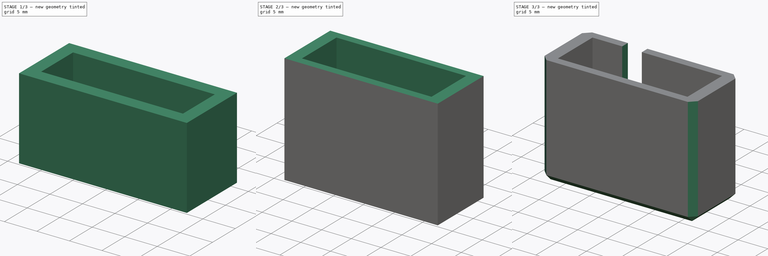
[diagram: build sequence overview — one tinted view per stage of 3, left to right]
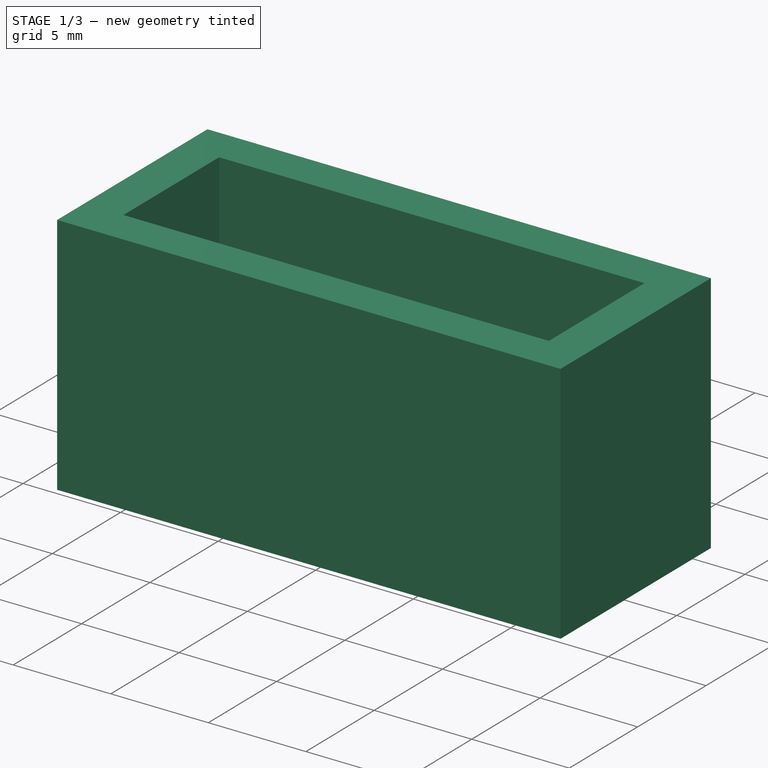
[diagram: stage 1 of 3 — iso view after this stage's code; geometry added in this stage tinted green]
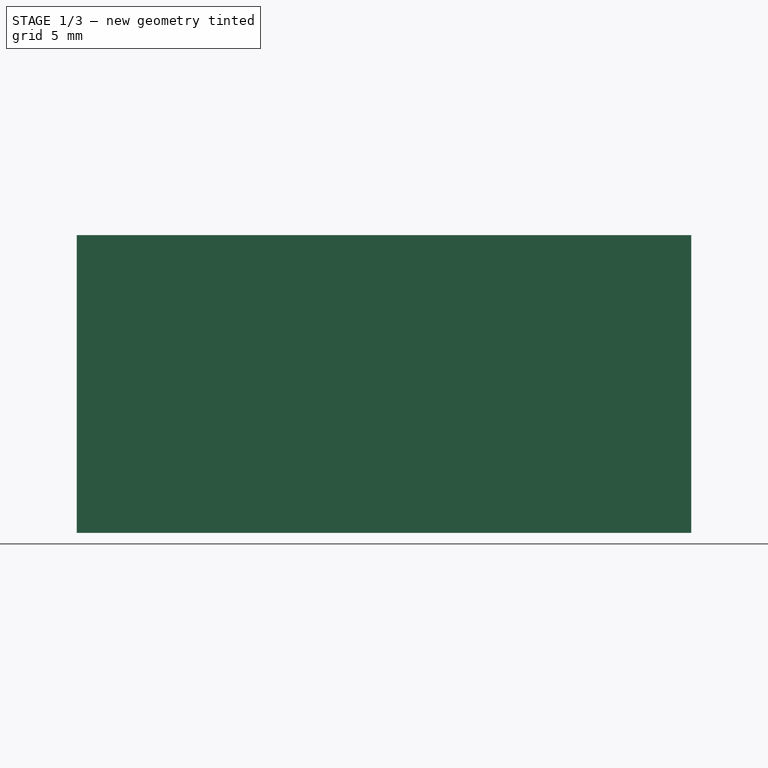
[diagram: stage 1 of 3 — front view after this stage's code; geometry added in this stage tinted green]
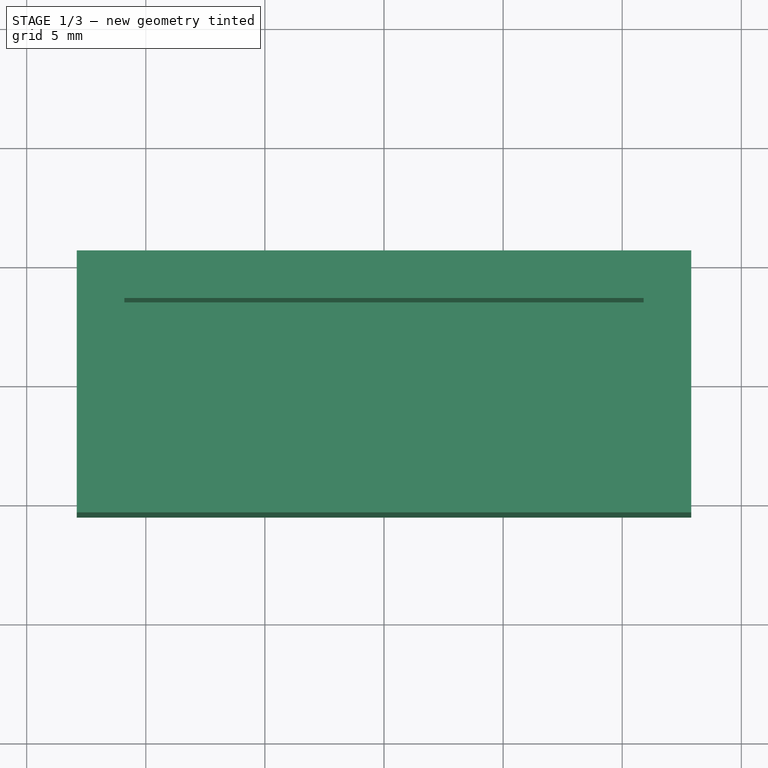
[diagram: stage 1 of 3 — top view after this stage's code; geometry added in this stage tinted green]
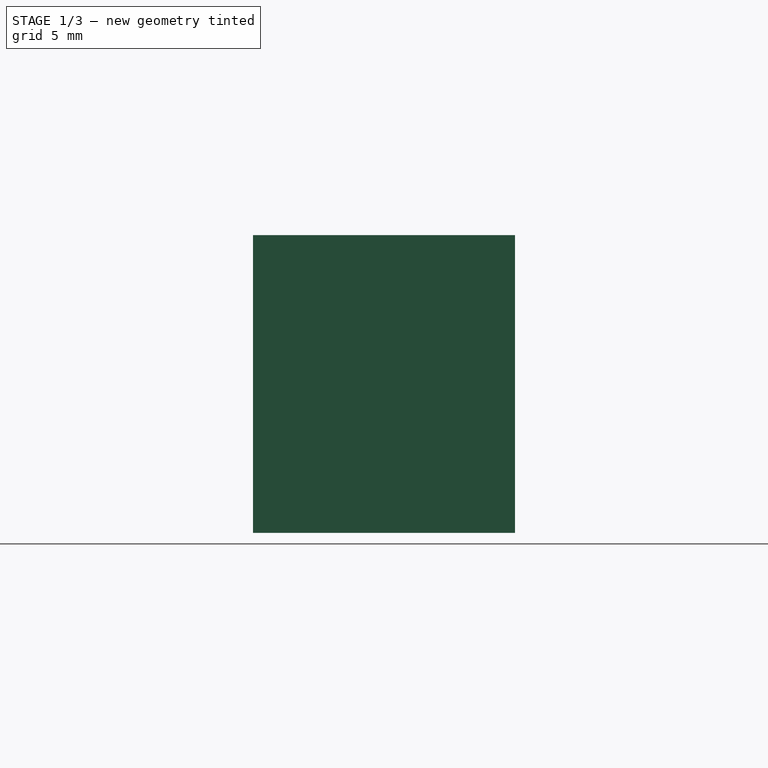
[diagram: stage 1 of 3 — right view after this stage's code; geometry added in this stage tinted green]
FCSTD DOCUMENT  (FreeCAD 0.19R23578 (Git))
Label: molex f cap
License: All rights reserved
LicenseURL: http://en.wikipedia.org/wiki/All_rights_reserved
objects: Sketcher::SketchObject×3, PartDesign::Pad×2, PartDesign::Thickness×1, PartDesign::Pocket×1, PartDesign::Chamfer×1, PartDesign::Body×1
note: 14 computed .brp shape members not serialized (recipe doc carries the construction recipe); baked Part::Feature solids carry a one-line shape summary decoded from their .brp

FEATURE [Sketcher::SketchObject] Sketch
  MapMode = 5
  Support = -> [XY_Plane]
  sketch-geometry (4):
    g0: LineSegment StartX=-10.9 StartY=3.5 StartZ=0 EndX=10.9 EndY=3.5 EndZ=0
    g1: LineSegment StartX=10.9 StartY=3.5 StartZ=0 EndX=10.9 EndY=-3.5 EndZ=0
    g2: LineSegment StartX=10.9 StartY=-3.5 StartZ=0 EndX=-10.9 EndY=-3.5 EndZ=0
    g3: LineSegment StartX=-10.9 StartY=-3.5 StartZ=0 EndX=-10.9 EndY=3.5 EndZ=0
  constraints (11):
    c: Coincident(g0,g1)
    c: Coincident(g1,g2)
    c: Coincident(g2,g3)
    c: Coincident(g3,g0)
    c: Horizontal(g0)
    c: Horizontal(g2)
    c: Vertical(g1)
    c: Vertical(g3)
    c: Symmetric(g1,g0,g-1)
    c: DistanceY(g1,g1) = 7
    c: DistanceX(g0,g0) = 21.8
FEATURE [PartDesign::Pad] Pad
  Direction = (1,1,1)
  Length = 10.5
  Length2 = 100
  Profile = -> Sketch
  Refine = true
  Type = 0
  expr: Length = 10.5mm
FEATURE [PartDesign::Thickness] Thickness
  Base = -> Pad [Face6]
  BaseFeature = -> Pad
  Intersection = false
  Join = 1
  Mode = 0
  Refine = true
  SupportTransform = false
  Value = 2
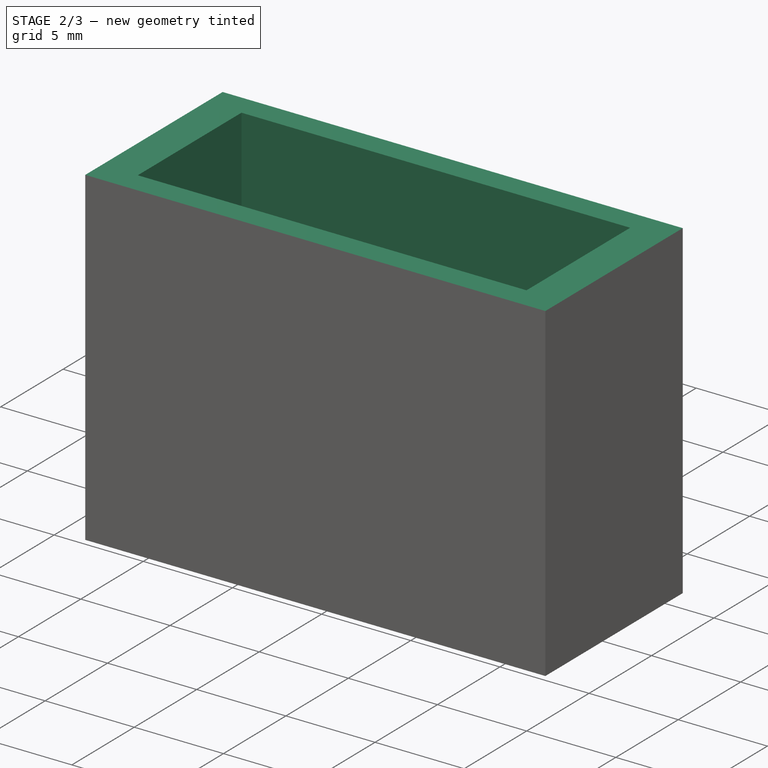
[diagram: stage 2 of 3 — iso view after this stage's code; geometry added in this stage tinted green]
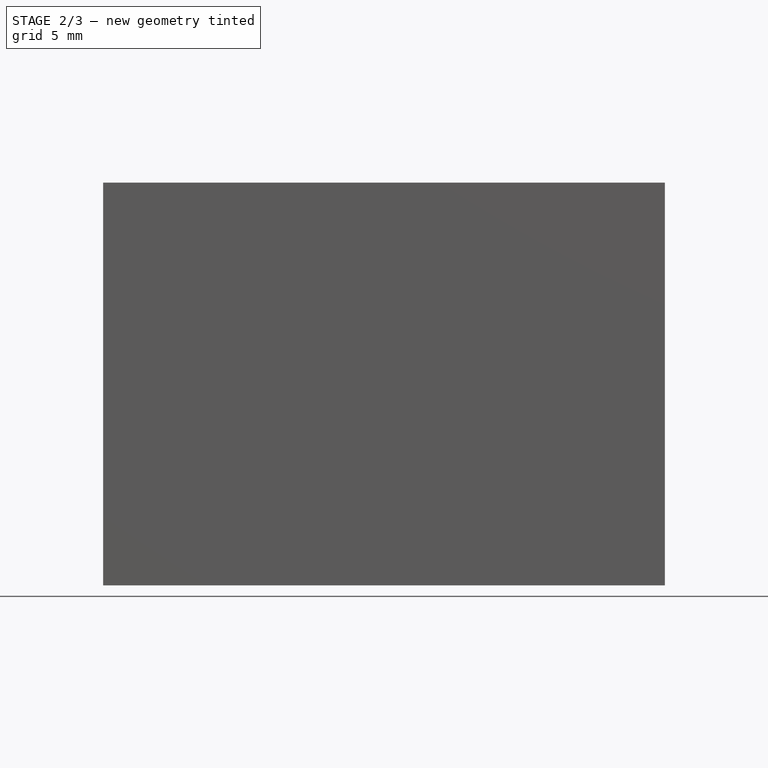
[diagram: stage 2 of 3 — front view after this stage's code; geometry added in this stage tinted green]
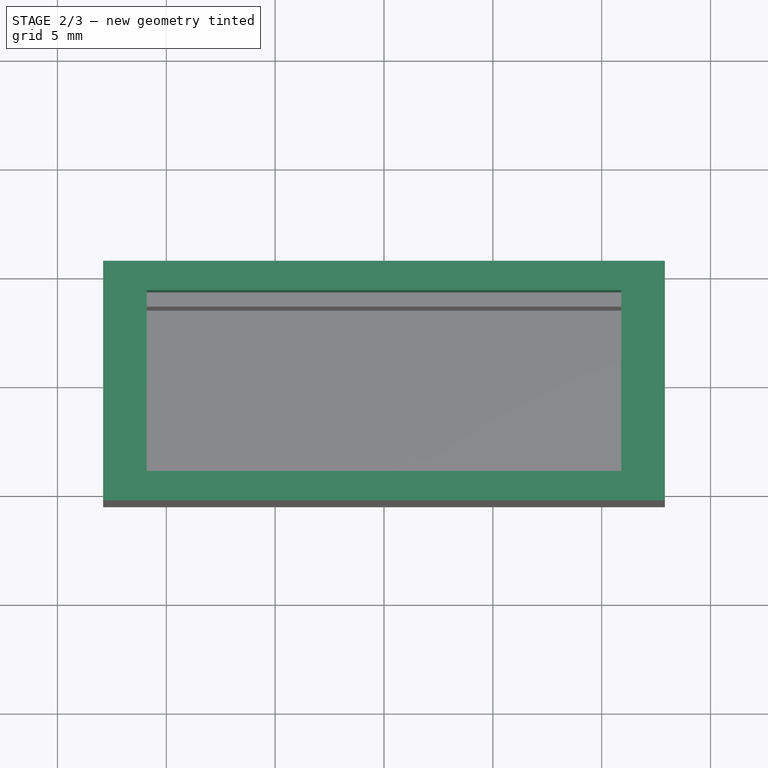
[diagram: stage 2 of 3 — top view after this stage's code; geometry added in this stage tinted green]
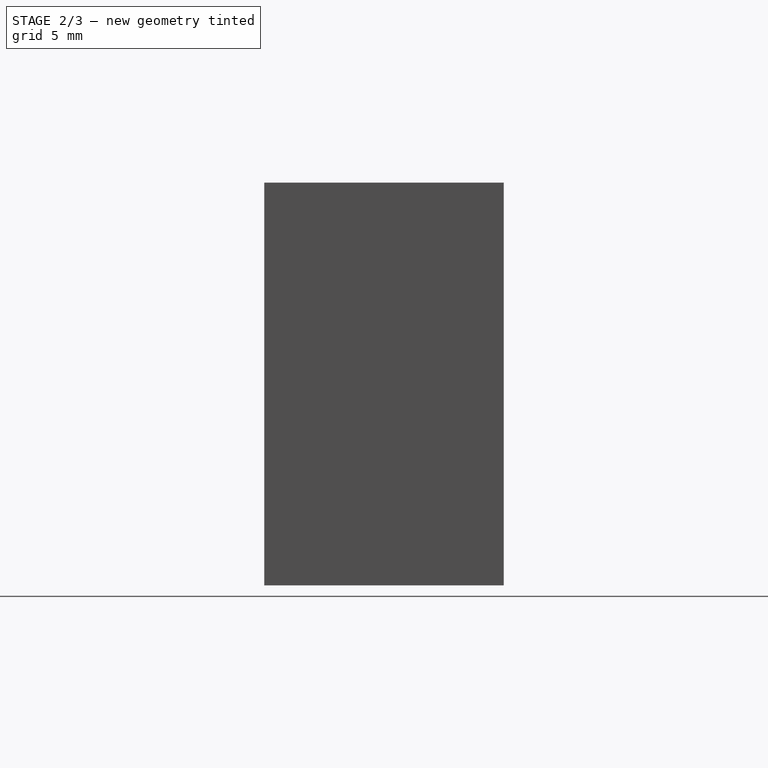
[diagram: stage 2 of 3 — right view after this stage's code; geometry added in this stage tinted green]
FEATURE [Sketcher::SketchObject] Sketch001
  ExternalGeometry = -> [Thickness]
  MapMode = 5
  Placement = pos=(0,0,10.5) rot=(0,0,1;0rad)
  Support = -> [Thickness]
  sketch-geometry (8):
    g0: LineSegment StartX=-12.9 StartY=5.5 StartZ=0 EndX=12.9 EndY=5.5 EndZ=0
    g1: LineSegment StartX=12.9 StartY=5.5 StartZ=0 EndX=12.9 EndY=-5.5 EndZ=0
    g2: LineSegment StartX=12.9 StartY=-5.5 StartZ=0 EndX=-12.9 EndY=-5.5 EndZ=0
    g3: LineSegment StartX=-12.9 StartY=-5.5 StartZ=0 EndX=-12.9 EndY=5.5 EndZ=0
    g4: LineSegment StartX=-10.9 StartY=4.15 StartZ=0 EndX=10.9 EndY=4.15 EndZ=0
    g5: LineSegment StartX=10.9 StartY=4.15 StartZ=0 EndX=10.9 EndY=-4.15 EndZ=0
    g6: LineSegment StartX=10.9 StartY=-4.15 StartZ=0 EndX=-10.9 EndY=-4.15 EndZ=0
    g7: LineSegment StartX=-10.9 StartY=-4.15 StartZ=0 EndX=-10.9 EndY=4.15 EndZ=0
  constraints (21):
    c: Coincident(g0,g1)
    c: Coincident(g1,g2)
    c: Coincident(g2,g3)
    c: Coincident(g3,g0)
    c: Horizontal(g0)
    c: Horizontal(g2)
    c: Vertical(g1)
    c: Vertical(g3)
    c: Coincident(g0,g-3)
    c: Coincident(g1,g-4)
    c: Coincident(g4,g5)
    c: Coincident(g5,g6)
    c: Coincident(g6,g7)
    c: Coincident(g7,g4)
    c: Horizontal(g4)
    c: Horizontal(g6)
    c: Vertical(g5)
    c: Vertical(g7)
    c: Vertical(g5,g-5)
    c: Symmetric(g5,g4,g-1)
    c: DistanceY(g5,g5) = 8.3
FEATURE [PartDesign::Pad] Pad001
  BaseFeature = -> Thickness
  Direction = (1,1,1)
  Length = 6
  Length2 = 100
  Profile = -> Sketch001
  Refine = true
  Type = 0
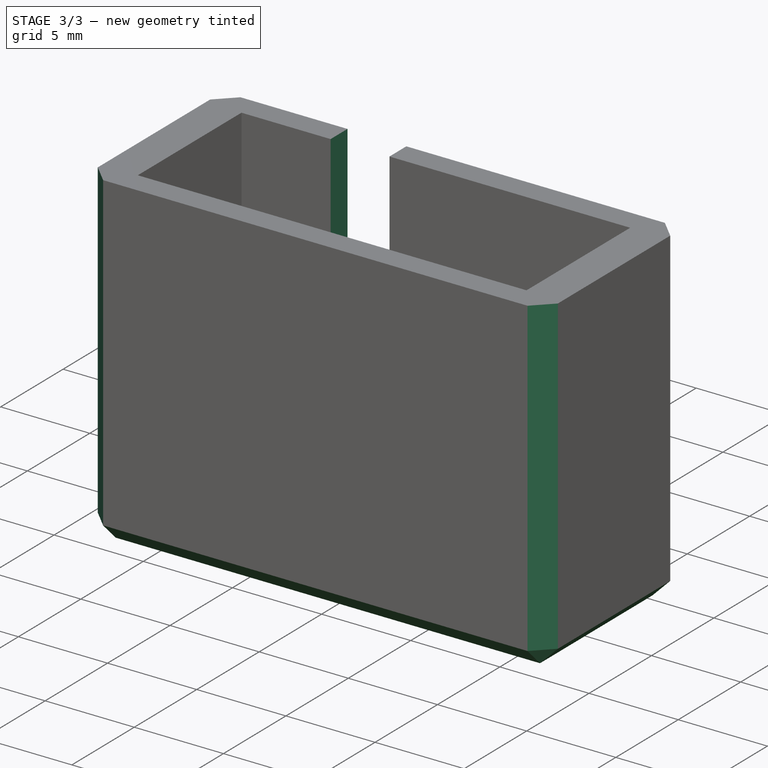
[diagram: stage 3 of 3 — iso view after this stage's code; geometry added in this stage tinted green]
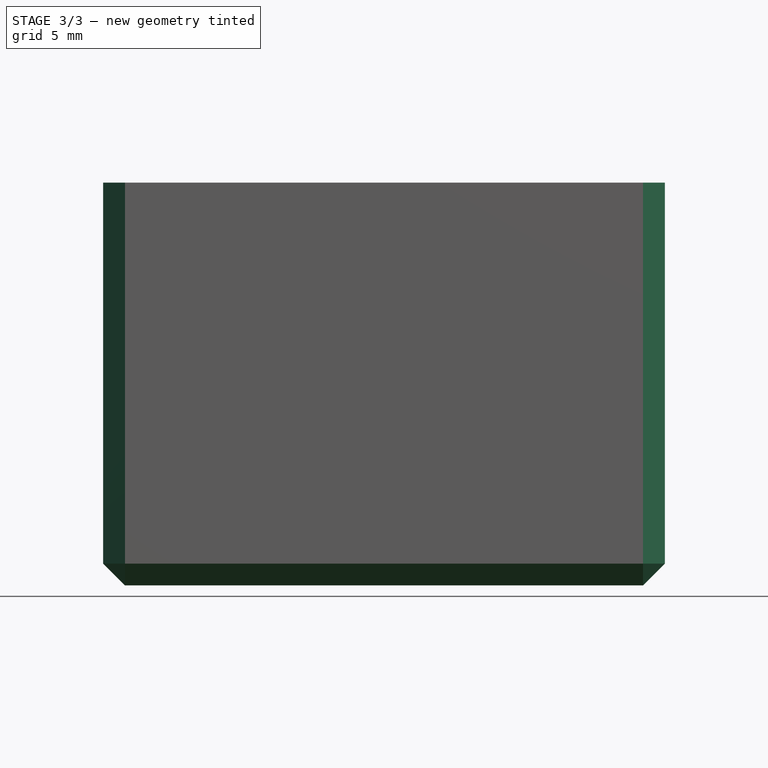
[diagram: stage 3 of 3 — front view after this stage's code; geometry added in this stage tinted green]
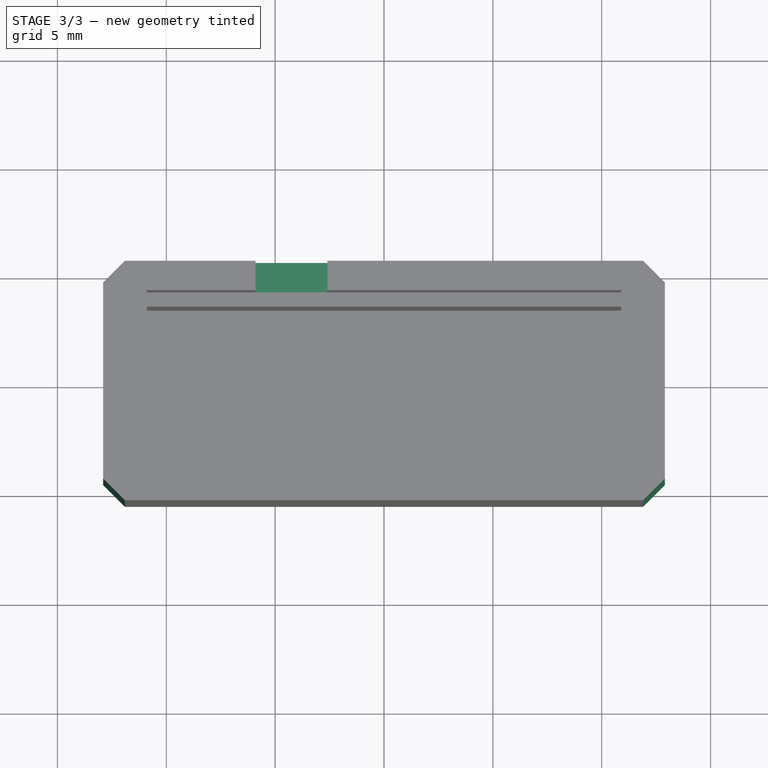
[diagram: stage 3 of 3 — top view after this stage's code; geometry added in this stage tinted green]
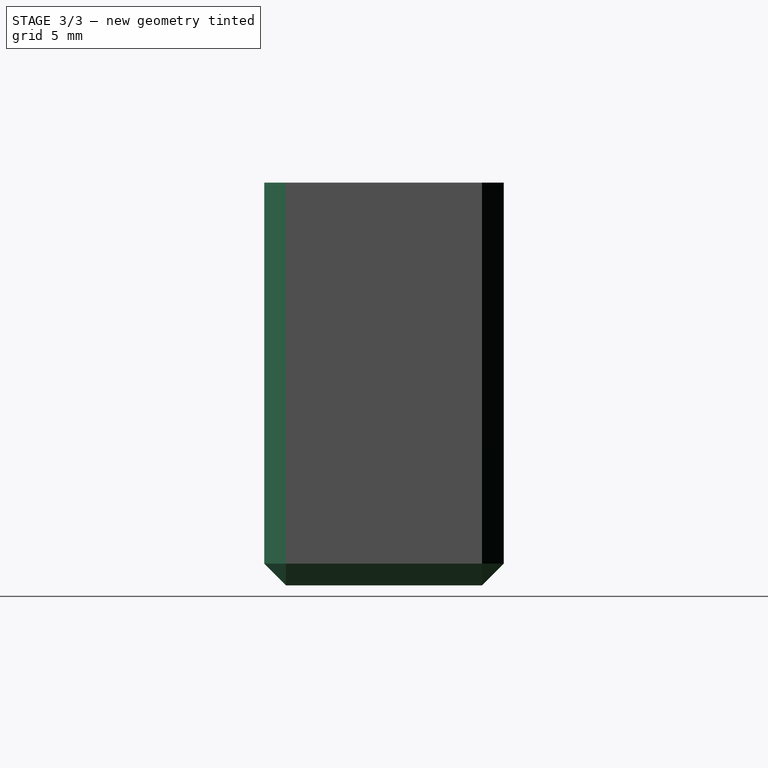
[diagram: stage 3 of 3 — right view after this stage's code; geometry added in this stage tinted green]
FEATURE [Sketcher::SketchObject] Sketch002
  ExternalGeometry = -> [Pad001]
  MapMode = 5
  Placement = pos=(0,0,16.5) rot=(0,0,1;0rad)
  Support = -> [Pad001]
  sketch-geometry (4):
    g0: LineSegment StartX=-5.9 StartY=4.15 StartZ=0 EndX=-2.6 EndY=4.15 EndZ=0
    g1: LineSegment StartX=-2.6 StartY=4.15 StartZ=0 EndX=-2.6 EndY=5.5 EndZ=0
    g2: LineSegment StartX=-2.6 StartY=5.5 StartZ=0 EndX=-5.9 EndY=5.5 EndZ=0
    g3: LineSegment StartX=-5.9 StartY=5.5 StartZ=0 EndX=-5.9 EndY=4.15 EndZ=0
  constraints (12):
    c: Coincident(g0,g1)
    c: Coincident(g2,g3)
    c: Coincident(g3,g0)
    c: Horizontal(g0)
    c: Horizontal(g2)
    c: Vertical(g1)
    c: Vertical(g3)
    c: PointOnObject(g0,g-3)
    c: DistanceX(g0,g-3) = 13.5
    c: DistanceX(g-3,g0) = 5
    c: PointOnObject(g2,g-4)
    c: Coincident(g1,g2)
FEATURE [PartDesign::Pocket] Pocket
  BaseFeature = -> Pad001
  Length = 6
  Length2 = 100
  Profile = -> Sketch002
  Refine = true
  Type = 0
FEATURE [PartDesign::Chamfer] Chamfer
  Angle = 45
  Base = -> Pocket [Edge38,Edge41,Edge39,Edge43,Edge40,Edge42,Face17,Edge45]
  BaseFeature = -> Pocket
  ChamferType = 0
  FlipDirection = false
  Refine = true
  Size = 1
  Size2 = 1
  SupportTransform = false
FEATURE [PartDesign::Body] Body
  Group = -> [Sketch,Pad,Thickness,Sketch001,Pad001,Sketch002,Pocket,Chamfer]
  Origin = -> Origin
  Tip = -> Chamfer
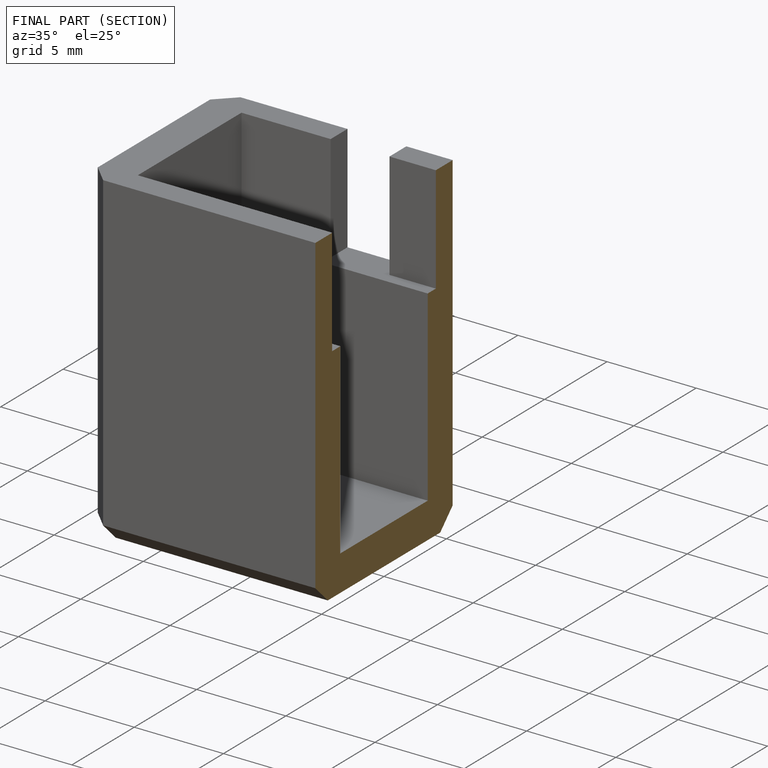
[diagram: finished part — half-section view (interior)]
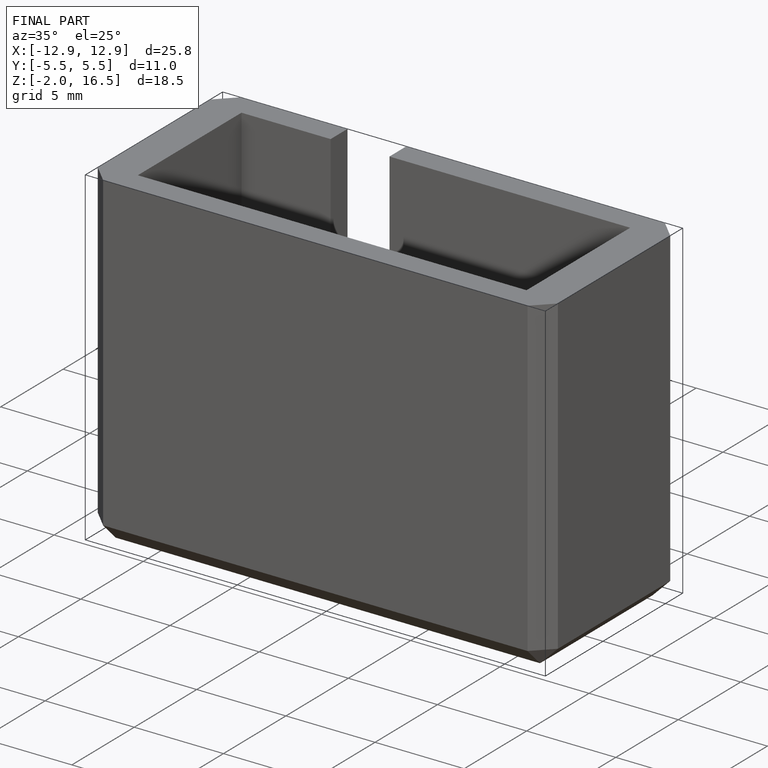
[diagram: finished part — iso view with bounding-box wireframe]
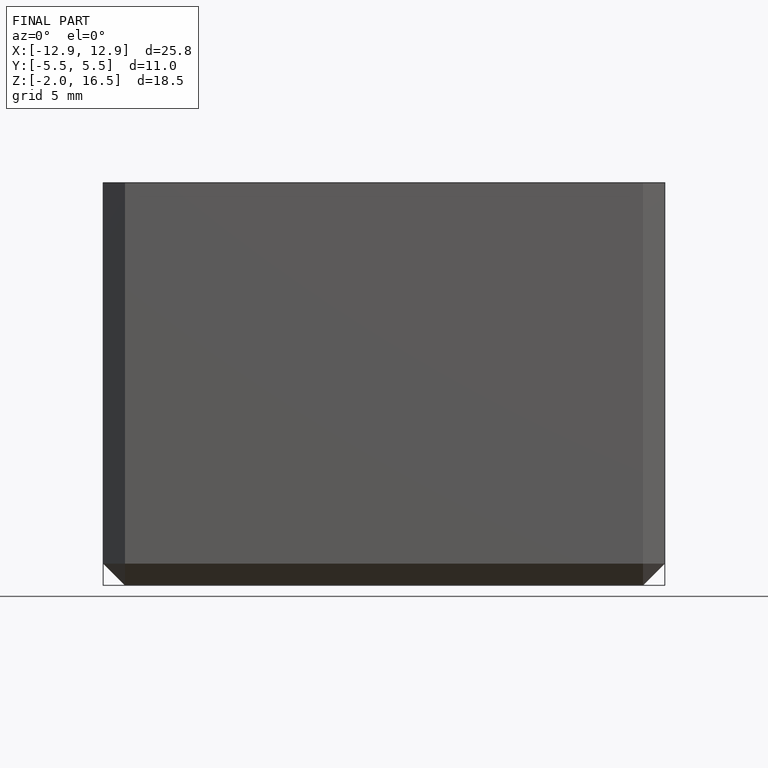
[diagram: finished part — front view with bounding-box wireframe]
